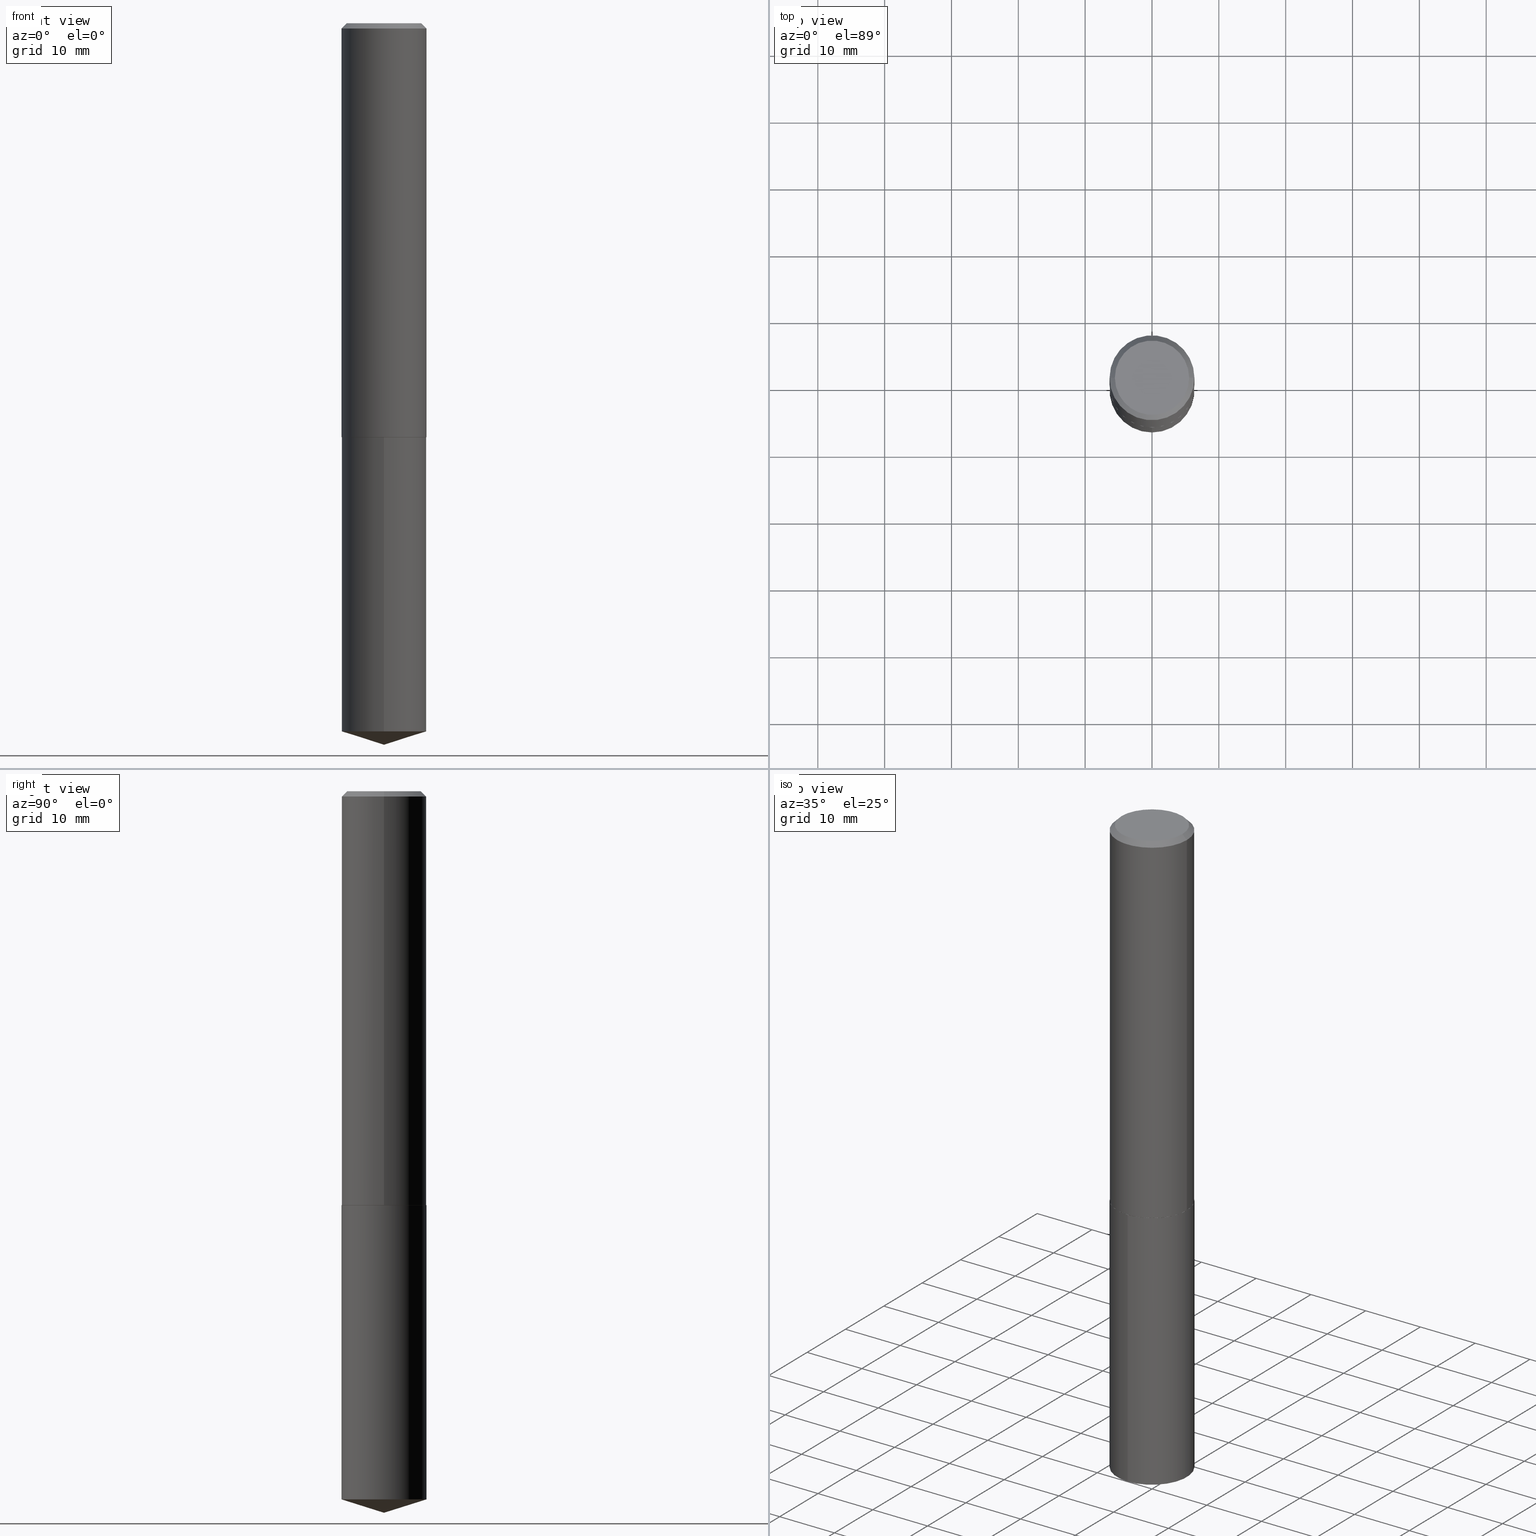
[diagram: canonical four-view strip — front | top / right | iso, engineering-drawing reading convention]
A machine part, canonical four-view strip (front | top / right | iso — engineering-drawing reading convention). The complete STEP part file that produces these views, byte-faithful:
ISO-10303-21;
HEADER;
FILE_DESCRIPTION (( 'STEP AP203' ),
    '1' );
FILE_NAME ('50031.STEP',
    '2024-04-22T18:11:30',
    ( '' ),
    ( '' ),
    'SwSTEP 2.0',
    'SolidWorks 2023',
    '' );
FILE_SCHEMA (( 'CONFIG_CONTROL_DESIGN' ));
ENDSEC;

DATA;
#1 = CIRCLE ( 'NONE', #60, 0.2500000000000000000 ) ;
#2 = DIRECTION ( 'NONE',  ( -2.445728055791702140E-29, 3.491110078650972544E-15, 1.000000000000000000 ) ) ;
#3 = DIRECTION ( 'NONE',  ( -2.445468806185136597E-29, 3.491481338843145583E-15, 1.000000000000000000 ) ) ;
#4 = DIRECTION ( 'NONE',  ( 2.438088387897960049E-29, -3.491481338843145188E-15, -1.000000000000000000 ) ) ;
#5 = CARTESIAN_POINT ( 'NONE',  ( 0.000000000000000000, 0.000000000000000000, 0.000000000000000000 ) ) ;
#6 = LOCAL_TIME ( 14, 11, 30.00000000000000000, #228 ) ;
#7 = CARTESIAN_POINT ( 'NONE',  ( 0.2187500000000000000, -1.662483614147127260E-15, 1.690012582834502406E-18 ) ) ;
#8 = CARTESIAN_POINT ( 'NONE',  ( 7.642090019328604414E-31, -1.091087918388490513E-16, -0.03125000000000021511 ) ) ;
#9 = FACE_OUTER_BOUND ( 'NONE', #105, .T. ) ;
#10 = AXIS2_PLACEMENT_3D ( 'NONE', #13, #378, #164 ) ;
#11 = CC_DESIGN_APPROVAL ( #103, ( #72 ) ) ;
#12 = VERTEX_POINT ( 'NONE', #330 ) ;
#13 = CARTESIAN_POINT ( 'NONE',  ( 5.960830215076271576E-29, -8.510485763430168319E-15, -2.437500000000000444 ) ) ;
#14 = DIRECTION ( 'NONE',  ( 1.000000000000000000, -6.982962677686264344E-15, 0.000000000000000000 ) ) ;
#15 = ORIENTED_EDGE ( 'NONE', *, *, #68, .T. ) ;
#16 = AXIS2_PLACEMENT_3D ( 'NONE', #369, #4, #59 ) ;
#17 = DATE_AND_TIME ( #112, #377 ) ;
#18 = EDGE_LOOP ( 'NONE', ( #73, #115, #251, #113 ) ) ;
#19 = CARTESIAN_POINT ( 'NONE',  ( 1.020092841309431033E-28, -1.456293727170468703E-14, -4.171175302780254057 ) ) ;
#20 = ORIENTED_EDGE ( 'NONE', *, *, #290, .T. ) ;
#21 = PRODUCT_DEFINITION ( 'UNKNOWN', '', #72, #102 ) ;
#22 = AXIS2_PLACEMENT_3D ( 'NONE', #153, #276, #309 ) ;
#23 = LOCAL_TIME ( 14, 11, 30.00000000000000000, #145 ) ;
#24 = CALENDAR_DATE ( 2024, 22, 4 ) ;
#25 = LINE ( 'NONE', #146, #110 ) ;
#26 = EDGE_LOOP ( 'NONE', ( #159, #253, #141, #387 ) ) ;
#27 = CARTESIAN_POINT ( 'NONE',  ( -0.2500000000000002776, -6.734128924029917066E-15, -2.437500000000000444 ) ) ;
#28 = VECTOR ( 'NONE', #2, 39.37007874015748143 ) ;
#29 = EDGE_CURVE ( 'NONE', #263, #53, #297, .T. ) ;
#30 = DIRECTION ( 'NONE',  ( -2.445468806185136597E-29, 3.491481338843145583E-15, 1.000000000000000000 ) ) ;
#31 = LINE ( 'NONE', #57, #28 ) ;
#32 = APPROVAL ( #137, 'UNSPECIFIED' ) ;
#33 = DIRECTION ( 'NONE',  ( 1.000000000000000000, -6.982962677686266711E-15, 4.876133991931148155E-29 ) ) ;
#34 = CC_DESIGN_PERSON_AND_ORGANIZATION_ASSIGNMENT ( #76, #234, ( #247 ) ) ;
#35 = CIRCLE ( 'NONE', #127, 0.2187500000000000000 ) ;
#36 = CARTESIAN_POINT ( 'NONE',  ( 7.642090019328604414E-31, -1.091087918388490513E-16, -0.03125000000000021511 ) ) ;
#37 = LOCAL_TIME ( 14, 11, 30.00000000000000000, #379 ) ;
#38 = LINE ( 'NONE', #130, #280 ) ;
#39 = DIRECTION ( 'NONE',  ( -2.445468806185136597E-29, 3.491481338843145583E-15, 1.000000000000000000 ) ) ;
#40 = ORIENTED_EDGE ( 'NONE', *, *, #68, .F. ) ;
#41 = CARTESIAN_POINT ( 'NONE',  ( 7.642090019328604414E-31, -1.091087918388490513E-16, -0.03125000000000021511 ) ) ;
#42 = EDGE_CURVE ( 'NONE', #292, #46, #1, .T. ) ;
#43 = SECURITY_CLASSIFICATION ( '', '', #139 ) ;
#44 = FACE_OUTER_BOUND ( 'NONE', #272, .T. ) ;
#45 = ORIENTED_EDGE ( 'NONE', *, *, #201, .T. ) ;
#46 = VERTEX_POINT ( 'NONE', #52 ) ;
#47 = APPROVAL_ROLE ( '' ) ;
#48 = CIRCLE ( 'NONE', #300, 0.2187500000000000000 ) ;
#49 = PERSON_AND_ORGANIZATION ( #323, #332 ) ;
#50 = ORIENTED_EDGE ( 'NONE', *, *, #306, .T. ) ;
#51 = PERSON_AND_ORGANIZATION ( #323, #332 ) ;
#52 = CARTESIAN_POINT ( 'NONE',  ( -1.745740669421464126E-15, -0.2500000000000144884, -4.171175302780253169 ) ) ;
#53 = VERTEX_POINT ( 'NONE', #304 ) ;
#54 = EDGE_CURVE ( 'NONE', #53, #143, #25, .T. ) ;
#55 = APPROVAL_STATUS ( 'not_yet_approved' ) ;
#56 = ORIENTED_EDGE ( 'NONE', *, *, #353, .F. ) ;
#57 = CARTESIAN_POINT ( 'NONE',  ( -1.745740669421506724E-15, -0.2500000000000084932, -2.437999999999999279 ) ) ;
#58 = ADVANCED_FACE ( 'NONE', ( #239 ), #362, .T. ) ;
#59 = DIRECTION ( 'NONE',  ( -1.000000000000000000, 6.982962677686265922E-15, -4.876176775795935793E-29 ) ) ;
#60 = AXIS2_PLACEMENT_3D ( 'NONE', #19, #147, #333 ) ;
#61 = CARTESIAN_POINT ( 'NONE',  ( -0.2500000000000002776, -6.734128924029917066E-15, -2.437500000000000444 ) ) ;
#62 = DIRECTION ( 'NONE',  ( 1.000000000000000000, -6.982962677686264344E-15, 0.000000000000000000 ) ) ;
#63 = CC_DESIGN_DATE_AND_TIME_ASSIGNMENT ( #349, #303, ( #21 ) ) ;
#64 = LINE ( 'NONE', #61, #286 ) ;
#65 = VECTOR ( 'NONE', #302, 39.37007874015748143 ) ;
#66 = DIRECTION ( 'NONE',  ( 6.982962677686265922E-15, 1.000000000000000000, -3.491110078650972544E-15 ) ) ;
#67 = CARTESIAN_POINT ( 'NONE',  ( -8.589479394695765693E-28, 1.226071557204310290E-13, 35.12007874015748143 ) ) ;
#68 = EDGE_CURVE ( 'NONE', #227, #78, #64, .T. ) ;
#69 = CARTESIAN_POINT ( 'NONE',  ( 5.962052949479364377E-29, -8.512231504099590611E-15, -2.438000000000000611 ) ) ;
#70 = FACE_OUTER_BOUND ( 'NONE', #18, .T. ) ;
#71 = AXIS2_PLACEMENT_3D ( 'NONE', #316, #225, #66 ) ;
#72 = PRODUCT_DEFINITION_FORMATION_WITH_SPECIFIED_SOURCE ( 'ANY', '', #247, .NOT_KNOWN. ) ;
#73 = ORIENTED_EDGE ( 'NONE', *, *, #207, .T. ) ;
#74 = DIRECTION ( 'NONE',  ( -6.982962677686265922E-15, -1.000000000000000000, 3.500519750498711532E-15 ) ) ;
#75 = ADVANCED_FACE ( 'NONE', ( #89 ), #93, .T. ) ;
#76 = PERSON_AND_ORGANIZATION ( #323, #332 ) ;
#77 = SHAPE_DEFINITION_REPRESENTATION ( #224, #305 ) ;
#78 = VERTEX_POINT ( 'NONE', #27 ) ;
#79 =( CONVERSION_BASED_UNIT ( 'INCH', #101 ) LENGTH_UNIT ( ) NAMED_UNIT ( #288 ) );
#80 = VERTEX_POINT ( 'NONE', #7 ) ;
#81 = ADVANCED_FACE ( 'NONE', ( #118 ), #185, .T. ) ;
#82 = ORIENTED_EDGE ( 'NONE', *, *, #220, .T. ) ;
#83 = PERSON_AND_ORGANIZATION_ROLE ( 'design_supplier' ) ;
#84 = ORIENTED_EDGE ( 'NONE', *, *, #29, .F. ) ;
#85 = AXIS2_PLACEMENT_3D ( 'NONE', #363, #275, #335 ) ;
#86 = APPROVAL_PERSON_ORGANIZATION ( #298, #278, #178 ) ;
#87 = CARTESIAN_POINT ( 'NONE',  ( 5.962052949479363256E-29, -8.512231504099589034E-15, -2.438000000000000167 ) ) ;
#88 = EDGE_CURVE ( 'NONE', #285, #143, #273, .T. ) ;
#89 = FACE_OUTER_BOUND ( 'NONE', #380, .T. ) ;
#90 = CARTESIAN_POINT ( 'NONE',  ( 1.039435532178906852E-28, -1.483721783426663045E-14, -4.250000000000000000 ) ) ;
#91 = AXIS2_PLACEMENT_3D ( 'NONE', #198, #248, #125 ) ;
#92 = CC_DESIGN_APPROVAL ( #278, ( #21 ) ) ;
#93 = CYLINDRICAL_SURFACE ( 'NONE', #238, 0.2500000000000001110 ) ;
#94 = CARTESIAN_POINT ( 'NONE',  ( -0.2495000000000004436, -6.736778151204026689E-15, -2.438000000000000611 ) ) ;
#95 = DIRECTION ( 'NONE',  ( -2.445468806185136597E-29, 3.491481338843145583E-15, 1.000000000000000000 ) ) ;
#96 = AXIS2_PLACEMENT_3D ( 'NONE', #289, #315, #74 ) ;
#97 = DIRECTION ( 'NONE',  ( -1.000000000000000000, 6.982962677686266711E-15, 0.000000000000000000 ) ) ;
#98 = EDGE_CURVE ( 'NONE', #227, #263, #189, .T. ) ;
#99 = DIRECTION ( 'NONE',  ( -2.438088387897960049E-29, 3.491481338843145188E-15, 1.000000000000000000 ) ) ;
#100 = ORIENTED_EDGE ( 'NONE', *, *, #274, .F. ) ;
#101 = LENGTH_MEASURE_WITH_UNIT ( LENGTH_MEASURE( 0.02539999999999999897 ), #322 );
#102 = DESIGN_CONTEXT ( 'detailed design', #321, 'design' ) ;
#103 = APPROVAL ( #55, 'UNSPECIFIED' ) ;
#104 = DIRECTION ( 'NONE',  ( -2.445728055791702140E-29, 3.491110078650972544E-15, 1.000000000000000000 ) ) ;
#105 = EDGE_LOOP ( 'NONE', ( #230, #193, #210, #171 ) ) ;
#106 = DIRECTION ( 'NONE',  ( -2.445468806185136597E-29, 3.491481338843145583E-15, 1.000000000000000000 ) ) ;
#107 = DATE_AND_TIME ( #209, #293 ) ;
#108 = ORIENTED_EDGE ( 'NONE', *, *, #290, .F. ) ;
#109 = ORIENTED_EDGE ( 'NONE', *, *, #152, .T. ) ;
#110 = VECTOR ( 'NONE', #389, 39.37007874015748143 ) ;
#111 = ADVANCED_FACE ( 'NONE', ( #213 ), #244, .T. ) ;
#112 = CALENDAR_DATE ( 2024, 22, 4 ) ;
#113 = ORIENTED_EDGE ( 'NONE', *, *, #152, .F. ) ;
#114 = APPLICATION_PROTOCOL_DEFINITION ( 'international standard', 'config_control_design', 1994, #140 ) ;
#115 = ORIENTED_EDGE ( 'NONE', *, *, #126, .T. ) ;
#116 = ORIENTED_EDGE ( 'NONE', *, *, #122, .T. ) ;
#117 = AXIS2_PLACEMENT_3D ( 'NONE', #151, #368, #186 ) ;
#118 = FACE_OUTER_BOUND ( 'NONE', #26, .T. ) ;
#119 = CARTESIAN_POINT ( 'NONE',  ( 1.776356839400310024E-15, 0.2499999999999915068, -2.438000000000001055 ) ) ;
#120 = CARTESIAN_POINT ( 'NONE',  ( -4.132873053354873331E-47, 5.900647395337827157E-33, 1.690012582823348383E-18 ) ) ;
#121 = CONICAL_SURFACE ( 'NONE', #361, 0.2500000000000000000, 0.7853981633974449483 ) ;
#122 = EDGE_CURVE ( 'NONE', #78, #53, #336, .T. ) ;
#123 = DIRECTION ( 'NONE',  ( 6.776566513254256560E-15, 0.9537169507482285979, 0.3007057995042677900 ) ) ;
#124 = FACE_OUTER_BOUND ( 'NONE', #359, .T. ) ;
#125 = DIRECTION ( 'NONE',  ( -6.982962677686265922E-15, -1.000000000000000000, 3.278217592397115862E-15 ) ) ;
#126 = EDGE_CURVE ( 'NONE', #292, #390, #243, .T. ) ;
#127 = AXIS2_PLACEMENT_3D ( 'NONE', #120, #95, #33 ) ;
#128 = CARTESIAN_POINT ( 'NONE',  ( 1.776356839400351439E-15, 0.2499999999999853728, -4.171175302780255834 ) ) ;
#129 = EDGE_LOOP ( 'NONE', ( #179, #45, #195, #351 ) ) ;
#130 = CARTESIAN_POINT ( 'NONE',  ( 1.039308013603312016E-28, -1.483902809896366514E-14, -4.250000000000000000 ) ) ;
#131 = CC_DESIGN_PERSON_AND_ORGANIZATION_ASSIGNMENT ( #51, #301, ( #21 ) ) ;
#132 = DIRECTION ( 'NONE',  ( -0.7071067811865451302, 2.468850131082231817E-15, -0.7071067811865499042 ) ) ;
#133 = UNCERTAINTY_MEASURE_WITH_UNIT (LENGTH_MEASURE( 1.000000000000000082E-05 ), #79, 'distance_accuracy_value', 'NONE');
#134 = VERTEX_POINT ( 'NONE', #311 ) ;
#135 = DIRECTION ( 'NONE',  ( -6.659769872151631300E-15, -0.9537169507482265995, 0.3007057995042744514 ) ) ;
#136 = VECTOR ( 'NONE', #242, 39.37007874015748143 ) ;
#137 = APPROVAL_STATUS ( 'not_yet_approved' ) ;
#138 = ORIENTED_EDGE ( 'NONE', *, *, #163, .T. ) ;
#139 = SECURITY_CLASSIFICATION_LEVEL ( 'unclassified' ) ;
#140 = APPLICATION_CONTEXT ( 'configuration controlled 3d designs of mechanical parts and assemblies' ) ;
#141 = ORIENTED_EDGE ( 'NONE', *, *, #169, .F. ) ;
#142 = CALENDAR_DATE ( 2024, 22, 4 ) ;
#143 = VERTEX_POINT ( 'NONE', #148 ) ;
#144 = CONICAL_SURFACE ( 'NONE', #96, 124.8659371009148060, 1.265363707695891016 ) ;
#145 = COORDINATED_UNIVERSAL_TIME_OFFSET ( 5, 0, .BEHIND. ) ;
#146 = CARTESIAN_POINT ( 'NONE',  ( 0.2500000000000001110, -1.745740669421567664E-15, 1.219044193948984649E-29 ) ) ;
#147 = DIRECTION ( 'NONE',  ( -2.445728055791702140E-29, 3.491110078650972544E-15, 1.000000000000000000 ) ) ;
#148 = CARTESIAN_POINT ( 'NONE',  ( 0.2500000000000000000, -1.854849461260415778E-15, -0.03125000000000021511 ) ) ;
#149 = CIRCLE ( 'NONE', #318, 0.2495000000000004436 ) ;
#150 = DIRECTION ( 'NONE',  ( 1.000000000000000000, -6.982962677686267499E-15, 4.876176775795936353E-29 ) ) ;
#151 = CARTESIAN_POINT ( 'NONE',  ( 5.960830215076271576E-29, -8.510485763430168319E-15, -2.437500000000000444 ) ) ;
#152 = EDGE_CURVE ( 'NONE', #46, #205, #31, .T. ) ;
#153 = CARTESIAN_POINT ( 'NONE',  ( 1.020092841309431033E-28, -1.456293727170468703E-14, -4.171175302780254057 ) ) ;
#154 = AXIS2_PLACEMENT_3D ( 'NONE', #155, #364, #337 ) ;
#155 = CARTESIAN_POINT ( 'NONE',  ( 7.642090019328604414E-31, -1.091087918388490513E-16, -0.03125000000000021511 ) ) ;
#156 = ADVANCED_FACE ( 'NONE', ( #124 ), #277, .F. ) ;
#157 = DIRECTION ( 'NONE',  ( 2.445468806185136597E-29, -3.491481338843145583E-15, -1.000000000000000000 ) ) ;
#158 = FACE_OUTER_BOUND ( 'NONE', #255, .T. ) ;
#159 = ORIENTED_EDGE ( 'NONE', *, *, #353, .T. ) ;
#160 = AXIS2_PLACEMENT_3D ( 'NONE', #310, #246, #62 ) ;
#161 = DIRECTION ( 'NONE',  ( -6.982962677686265922E-15, -1.000000000000000000, 3.278217592397115862E-15 ) ) ;
#162 = ORIENTED_EDGE ( 'NONE', *, *, #338, .T. ) ;
#163 = EDGE_CURVE ( 'NONE', #12, #80, #35, .T. ) ;
#164 = DIRECTION ( 'NONE',  ( 1.000000000000000000, -6.982962677686266711E-15, 0.000000000000000000 ) ) ;
#165 = CARTESIAN_POINT ( 'NONE',  ( -4.132873053354873331E-47, 5.900647395337827157E-33, 1.690012582823348383E-18 ) ) ;
#166 = AXIS2_PLACEMENT_3D ( 'NONE', #5, #30, #187 ) ;
#167 = APPROVAL_DATE_TIME ( #269, #103 ) ;
#168 = EDGE_LOOP ( 'NONE', ( #233, #203, #109, #108 ) ) ;
#169 = EDGE_CURVE ( 'NONE', #143, #285, #385, .T. ) ;
#170 = APPROVAL_DATE_TIME ( #271, #278 ) ;
#171 = ORIENTED_EDGE ( 'NONE', *, *, #88, .T. ) ;
#172 =( NAMED_UNIT ( * ) PLANE_ANGLE_UNIT ( ) SI_UNIT ( $, .RADIAN. ) );
#173 = ORIENTED_EDGE ( 'NONE', *, *, #29, .T. ) ;
#174 = CARTESIAN_POINT ( 'NONE',  ( 0.2500000000000002776, -1.025622643285173815E-14, -2.437500000000000444 ) ) ;
#175 = AXIS2_PLACEMENT_3D ( 'NONE', #192, #99, #252 ) ;
#176 = CC_DESIGN_APPROVAL ( #32, ( #43 ) ) ;
#177 = EDGE_CURVE ( 'NONE', #134, #292, #366, .T. ) ;
#178 = APPROVAL_ROLE ( '' ) ;
#179 = ORIENTED_EDGE ( 'NONE', *, *, #338, .F. ) ;
#180 = CC_DESIGN_PERSON_AND_ORGANIZATION_ASSIGNMENT ( #265, #83, ( #72 ) ) ;
#181 = CARTESIAN_POINT ( 'NONE',  ( 0.000000000000000000, 0.000000000000000000, 0.000000000000000000 ) ) ;
#182 = LINE ( 'NONE', #221, #249 ) ;
#183 = CIRCLE ( 'NONE', #10, 0.2500000000000002776 ) ;
#184 = APPROVAL_PERSON_ORGANIZATION ( #49, #103, #47 ) ;
#185 = CYLINDRICAL_SURFACE ( 'NONE', #166, 0.2500000000000001110 ) ;
#186 = DIRECTION ( 'NONE',  ( 1.000000000000000000, -6.982962677686266711E-15, 0.000000000000000000 ) ) ;
#187 = DIRECTION ( 'NONE',  ( 1.000000000000000000, -6.982962677686267499E-15, 4.876176775795936353E-29 ) ) ;
#188 = AXIS2_PLACEMENT_3D ( 'NONE', #36, #279, #281 ) ;
#189 = CIRCLE ( 'NONE', #160, 0.2495000000000004436 ) ;
#190 = CARTESIAN_POINT ( 'NONE',  ( 0.2495000000000004436, -1.025448069218231744E-14, -2.438000000000000611 ) ) ;
#191 = CC_DESIGN_PERSON_AND_ORGANIZATION_ASSIGNMENT ( #388, #386, ( #43 ) ) ;
#192 = CARTESIAN_POINT ( 'NONE',  ( 4.097995029152302120E-29, -1.118166854159597170E-14, -2.438000000000000611 ) ) ;
#193 = ORIENTED_EDGE ( 'NONE', *, *, #163, .F. ) ;
#194 = CARTESIAN_POINT ( 'NONE',  ( 5.960830215076271576E-29, -8.510485763430168319E-15, -2.437500000000000444 ) ) ;
#195 = ORIENTED_EDGE ( 'NONE', *, *, #169, .T. ) ;
#196 = VECTOR ( 'NONE', #123, 39.37007874015748143 ) ;
#197 = AXIS2_PLACEMENT_3D ( 'NONE', #202, #327, #354 ) ;
#198 = CARTESIAN_POINT ( 'NONE',  ( 5.962052949479363256E-29, -8.512231504099589034E-15, -2.438000000000000167 ) ) ;
#199 = ORIENTED_EDGE ( 'NONE', *, *, #122, .F. ) ;
#200 = DIRECTION ( 'NONE',  ( -6.982962677686265922E-15, -1.000000000000000000, 3.500519750498711532E-15 ) ) ;
#201 = EDGE_CURVE ( 'NONE', #80, #143, #182, .T. ) ;
#202 = CARTESIAN_POINT ( 'NONE',  ( 0.000000000000000000, 0.000000000000000000, 0.000000000000000000 ) ) ;
#203 = ORIENTED_EDGE ( 'NONE', *, *, #42, .T. ) ;
#204 = MECHANICAL_CONTEXT ( 'NONE', #140, 'mechanical' ) ;
#205 = VERTEX_POINT ( 'NONE', #218 ) ;
#206 = CALENDAR_DATE ( 2024, 22, 4 ) ;
#207 = EDGE_CURVE ( 'NONE', #46, #292, #365, .T. ) ;
#208 = EDGE_LOOP ( 'NONE', ( #40, #237, #173, #199 ) ) ;
#209 = CALENDAR_DATE ( 2024, 22, 4 ) ;
#210 = ORIENTED_EDGE ( 'NONE', *, *, #268, .T. ) ;
#211 = AXIS2_PLACEMENT_3D ( 'NONE', #194, #258, #226 ) ;
#212 = ORIENTED_EDGE ( 'NONE', *, *, #54, .T. ) ;
#213 = FACE_OUTER_BOUND ( 'NONE', #208, .T. ) ;
#214 = DIRECTION ( 'NONE',  ( -2.445728055791702140E-29, 3.491110078650972544E-15, 1.000000000000000000 ) ) ;
#215 = CLOSED_SHELL ( 'NONE', ( #257, #81, #381, #370, #111, #75, #342, #156 ) ) ;
#216 = VECTOR ( 'NONE', #287, 39.37007874015748143 ) ;
#217 =( GEOMETRIC_REPRESENTATION_CONTEXT ( 3 ) GLOBAL_UNCERTAINTY_ASSIGNED_CONTEXT ( ( #133 ) ) GLOBAL_UNIT_ASSIGNED_CONTEXT ( ( #79, #172, #259 ) ) REPRESENTATION_CONTEXT ( 'NONE', 'WORKASPACE' ) );
#218 = CARTESIAN_POINT ( 'NONE',  ( -1.745740669421506724E-15, -0.2500000000000084932, -2.437999999999999723 ) ) ;
#219 = FACE_OUTER_BOUND ( 'NONE', #270, .T. ) ;
#220 = EDGE_CURVE ( 'NONE', #205, #390, #222, .T. ) ;
#221 = CARTESIAN_POINT ( 'NONE',  ( 0.2500000000000000000, -1.824233291281731991E-15, -0.03125000000000021511 ) ) ;
#222 = CIRCLE ( 'NONE', #372, 0.2500000000000000000 ) ;
#223 = CARTESIAN_POINT ( 'NONE',  ( -0.2500000000000000000, 1.636631877582717577E-15, -0.03125000000000021511 ) ) ;
#224 = PRODUCT_DEFINITION_SHAPE ( 'NONE', 'NONE',  #21 ) ;
#225 = DIRECTION ( 'NONE',  ( 2.445728055791701860E-29, -3.491110078650972544E-15, -1.000000000000000000 ) ) ;
#226 = DIRECTION ( 'NONE',  ( 1.000000000000000000, -6.982962677686266711E-15, 0.000000000000000000 ) ) ;
#227 = VERTEX_POINT ( 'NONE', #94 ) ;
#228 = COORDINATED_UNIVERSAL_TIME_OFFSET ( 5, 0, .BEHIND. ) ;
#229 = APPROVAL_DATE_TIME ( #107, #32 ) ;
#230 = ORIENTED_EDGE ( 'NONE', *, *, #201, .F. ) ;
#231 = CC_DESIGN_PERSON_AND_ORGANIZATION_ASSIGNMENT ( #296, #294, ( #72 ) ) ;
#232 = CONICAL_SURFACE ( 'NONE', #347, 0.2500000000000000000, 0.7853981633974449483 ) ;
#233 = ORIENTED_EDGE ( 'NONE', *, *, #126, .F. ) ;
#234 = PERSON_AND_ORGANIZATION_ROLE ( 'design_owner' ) ;
#235 = ORIENTED_EDGE ( 'NONE', *, *, #177, .T. ) ;
#236 = COORDINATED_UNIVERSAL_TIME_OFFSET ( 5, 0, .BEHIND. ) ;
#237 = ORIENTED_EDGE ( 'NONE', *, *, #98, .T. ) ;
#238 = AXIS2_PLACEMENT_3D ( 'NONE', #181, #3, #150 ) ;
#239 = FACE_OUTER_BOUND ( 'NONE', #168, .T. ) ;
#240 = DIRECTION ( 'NONE',  ( -6.982962677686265922E-15, -1.000000000000000000, 3.278217592397115862E-15 ) ) ;
#241 = ADVANCED_FACE ( 'NONE', ( #219 ), #340, .F. ) ;
#242 = DIRECTION ( 'NONE',  ( -2.445728055791702140E-29, 3.491110078650972544E-15, 1.000000000000000000 ) ) ;
#243 = LINE ( 'NONE', #119, #136 ) ;
#244 = CONICAL_SURFACE ( 'NONE', #85, 0.2500000000000002776, 0.7853981633971067744 ) ;
#245 = DIRECTION ( 'NONE',  ( 0.7071067811865451302, -7.319954787623248157E-15, -0.7071067811865499042 ) ) ;
#246 = DIRECTION ( 'NONE',  ( -2.445468806185136597E-29, 3.491481338843145583E-15, 1.000000000000000000 ) ) ;
#247 = PRODUCT ( '50031', '50031', '', ( #204 ) ) ;
#248 = DIRECTION ( 'NONE',  ( -2.445728055791702140E-29, 3.491110078650972544E-15, 1.000000000000000000 ) ) ;
#249 = VECTOR ( 'NONE', #245, 39.37007874015748143 ) ;
#250 = CYLINDRICAL_SURFACE ( 'NONE', #91, 0.2500000000000000000 ) ;
#251 = ORIENTED_EDGE ( 'NONE', *, *, #220, .F. ) ;
#252 = DIRECTION ( 'NONE',  ( 1.000000000000000000, -6.982962677686265922E-15, 4.876176775795935793E-29 ) ) ;
#253 = ORIENTED_EDGE ( 'NONE', *, *, #274, .T. ) ;
#254 = CARTESIAN_POINT ( 'NONE',  ( 5.962052949479364377E-29, -8.512231504099590611E-15, -2.438000000000000167 ) ) ;
#255 = EDGE_LOOP ( 'NONE', ( #375, #295 ) ) ;
#256 = AXIS2_PLACEMENT_3D ( 'NONE', #254, #320, #161 ) ;
#257 = ADVANCED_FACE ( 'NONE', ( #344 ), #121, .T. ) ;
#258 = DIRECTION ( 'NONE',  ( -2.445468806185136597E-29, 3.491481338843145583E-15, 1.000000000000000000 ) ) ;
#259 =( NAMED_UNIT ( * ) SI_UNIT ( $, .STERADIAN. ) SOLID_ANGLE_UNIT ( ) );
#260 = PRODUCT_RELATED_PRODUCT_CATEGORY ( 'detail', '', ( #247 ) ) ;
#261 = ORIENTED_EDGE ( 'NONE', *, *, #88, .F. ) ;
#262 = PERSON_AND_ORGANIZATION ( #323, #332 ) ;
#263 = VERTEX_POINT ( 'NONE', #190 ) ;
#264 = CIRCLE ( 'NONE', #256, 0.2500000000000000000 ) ;
#265 = PERSON_AND_ORGANIZATION ( #323, #332 ) ;
#266 = CC_DESIGN_SECURITY_CLASSIFICATION ( #43, ( #72 ) ) ;
#267 = ORIENTED_EDGE ( 'NONE', *, *, #314, .T. ) ;
#268 = EDGE_CURVE ( 'NONE', #12, #285, #348, .T. ) ;
#269 = DATE_AND_TIME ( #206, #6 ) ;
#270 = EDGE_LOOP ( 'NONE', ( #82, #20 ) ) ;
#271 = DATE_AND_TIME ( #24, #37 ) ;
#272 = EDGE_LOOP ( 'NONE', ( #357, #235, #355 ) ) ;
#273 = CIRCLE ( 'NONE', #188, 0.2500000000000000000 ) ;
#274 = EDGE_CURVE ( 'NONE', #78, #285, #313, .T. ) ;
#275 = DIRECTION ( 'NONE',  ( -2.445468806185136597E-29, 3.491481338843145583E-15, 1.000000000000000000 ) ) ;
#276 = DIRECTION ( 'NONE',  ( -2.445728055791702140E-29, 3.491110078650972544E-15, 1.000000000000000000 ) ) ;
#277 = PLANE ( 'NONE',  #16 ) ;
#278 = APPROVAL ( #356, 'UNSPECIFIED' ) ;
#279 = DIRECTION ( 'NONE',  ( -2.445468806185136597E-29, 3.491481338843145583E-15, 1.000000000000000000 ) ) ;
#280 = VECTOR ( 'NONE', #135, 39.37007874015748143 ) ;
#281 = DIRECTION ( 'NONE',  ( 1.000000000000000000, -6.982962677686266711E-15, 0.000000000000000000 ) ) ;
#282 = DIRECTION ( 'NONE',  ( -1.000000000000000000, 6.982962677686266711E-15, 0.000000000000000000 ) ) ;
#283 = CARTESIAN_POINT ( 'NONE',  ( 1.776356839400352622E-15, 0.2499999999999915068, -2.438000000000001055 ) ) ;
#284 = ADVANCED_FACE ( 'NONE', ( #70 ), #250, .T. ) ;
#285 = VERTEX_POINT ( 'NONE', #371 ) ;
#286 = VECTOR ( 'NONE', #312, 39.37007874015748143 ) ;
#287 = DIRECTION ( 'NONE',  ( -2.445468806185136877E-29, 3.491481338843145188E-15, 1.000000000000000000 ) ) ;
#288 = DIMENSIONAL_EXPONENTS ( 1.000000000000000000, 0.000000000000000000, 0.000000000000000000, 0.000000000000000000, 0.000000000000000000, 0.000000000000000000, 0.000000000000000000 ) ;
#289 = CARTESIAN_POINT ( 'NONE',  ( -8.589479394695765693E-28, 1.226071557204310290E-13, 35.12007874015748143 ) ) ;
#290 = EDGE_CURVE ( 'NONE', #390, #205, #264, .T. ) ;
#291 = CARTESIAN_POINT ( 'NONE',  ( -0.2500000000000001110, 1.776356839400251254E-15, -1.229733772563727146E-29 ) ) ;
#292 = VERTEX_POINT ( 'NONE', #128 ) ;
#293 = LOCAL_TIME ( 14, 11, 30.00000000000000000, #329 ) ;
#294 = PERSON_AND_ORGANIZATION_ROLE ( 'creator' ) ;
#295 = ORIENTED_EDGE ( 'NONE', *, *, #98, .F. ) ;
#296 = PERSON_AND_ORGANIZATION ( #323, #332 ) ;
#297 = LINE ( 'NONE', #174, #65 ) ;
#298 = PERSON_AND_ORGANIZATION ( #323, #332 ) ;
#299 = ORIENTED_EDGE ( 'NONE', *, *, #42, .F. ) ;
#300 = AXIS2_PLACEMENT_3D ( 'NONE', #165, #106, #343 ) ;
#301 = PERSON_AND_ORGANIZATION_ROLE ( 'creator' ) ;
#302 = DIRECTION ( 'NONE',  ( 0.7071067811863059882, -2.468850131079726789E-15, 0.7071067811867890462 ) ) ;
#303 = DATE_TIME_ROLE ( 'creation_date' ) ;
#304 = CARTESIAN_POINT ( 'NONE',  ( 0.2500000000000002776, -1.025622643285173815E-14, -2.437500000000000444 ) ) ;
#305 = ADVANCED_BREP_SHAPE_REPRESENTATION ( '50031', ( #317, #324, #197 ), #217 ) ;
#306 = EDGE_CURVE ( 'NONE', #134, #46, #38, .T. ) ;
#307 = CARTESIAN_POINT ( 'NONE',  ( 5.962052949479364377E-29, -8.512231504099590611E-15, -2.438000000000000167 ) ) ;
#308 = CONICAL_SURFACE ( 'NONE', #352, 124.8659371009148060, 1.265363707695891016 ) ;
#309 = DIRECTION ( 'NONE',  ( -6.982962677686265922E-15, -1.000000000000000000, 4.370956789862821150E-15 ) ) ;
#310 = CARTESIAN_POINT ( 'NONE',  ( 5.962052949479364377E-29, -8.512231504099590611E-15, -2.438000000000000611 ) ) ;
#311 = CARTESIAN_POINT ( 'NONE',  ( 1.039434423711473592E-28, -1.483721783426663045E-14, -4.250000000000000000 ) ) ;
#312 = DIRECTION ( 'NONE',  ( -0.7071067811863059882, 7.493145998869481680E-15, 0.7071067811867890462 ) ) ;
#313 = LINE ( 'NONE', #291, #216 ) ;
#314 = EDGE_CURVE ( 'NONE', #263, #227, #149, .T. ) ;
#315 = DIRECTION ( 'NONE',  ( -2.445728055791702140E-29, 3.491110078650972544E-15, 1.000000000000000000 ) ) ;
#316 = CARTESIAN_POINT ( 'NONE',  ( 4.101723144992954185E-29, -1.117632966752097855E-14, -2.438000000000000167 ) ) ;
#317 = MANIFOLD_SOLID_BREP ( 'Body-Move/Copy2[1]', #384 ) ;
#318 = AXIS2_PLACEMENT_3D ( 'NONE', #69, #39, #14 ) ;
#319 = APPROVAL_PERSON_ORGANIZATION ( #262, #32, #382 ) ;
#320 = DIRECTION ( 'NONE',  ( -2.445728055791702140E-29, 3.491110078650972544E-15, 1.000000000000000000 ) ) ;
#321 = APPLICATION_CONTEXT ( 'configuration controlled 3d designs of mechanical parts and assemblies' ) ;
#322 =( LENGTH_UNIT ( ) NAMED_UNIT ( * ) SI_UNIT ( $, .METRE. ) );
#323 = PERSON ( 'UNSPECIFIED', 'UNSPECIFIED', 'UNSPECIFIED', ('UNSPECIFIED'), ('UNSPECIFIED'), ('UNSPECIFIED') ) ;
#324 = MANIFOLD_SOLID_BREP ( 'Body-Move/Copy2[2]', #215 ) ;
#325 = EDGE_LOOP ( 'NONE', ( #383, #50, #299 ) ) ;
#326 = ADVANCED_FACE ( 'NONE', ( #44 ), #144, .T. ) ;
#327 = DIRECTION ( 'NONE',  ( 0.000000000000000000, 0.000000000000000000, 1.000000000000000000 ) ) ;
#328 = EDGE_LOOP ( 'NONE', ( #267, #15, #56, #84 ) ) ;
#329 = COORDINATED_UNIVERSAL_TIME_OFFSET ( 5, 0, .BEHIND. ) ;
#330 = CARTESIAN_POINT ( 'NONE',  ( -0.2187500000000000000, 1.582077481663294210E-15, 1.690012582812475353E-18 ) ) ;
#331 = CONICAL_SURFACE ( 'NONE', #211, 0.2500000000000002776, 0.7853981633971067744 ) ;
#332 = ORGANIZATION ( 'UNSPECIFIED', 'UNSPECIFIED', '' ) ;
#333 = DIRECTION ( 'NONE',  ( -6.982962677686265922E-15, -1.000000000000000000, 4.370956789862821150E-15 ) ) ;
#334 = DIRECTION ( 'NONE',  ( -2.445728055791702140E-29, 3.491110078650972544E-15, 1.000000000000000000 ) ) ;
#335 = DIRECTION ( 'NONE',  ( 1.000000000000000000, -6.982962677686266711E-15, 0.000000000000000000 ) ) ;
#336 = CIRCLE ( 'NONE', #117, 0.2500000000000002776 ) ;
#337 = DIRECTION ( 'NONE',  ( 1.000000000000000000, -6.982962677686266711E-15, 0.000000000000000000 ) ) ;
#338 = EDGE_CURVE ( 'NONE', #80, #12, #48, .T. ) ;
#339 = DIRECTION ( 'NONE',  ( -6.982962677686265922E-15, -1.000000000000000000, 3.278217592397115862E-15 ) ) ;
#340 = PLANE ( 'NONE',  #71 ) ;
#341 = PLANE ( 'NONE',  #175 ) ;
#342 = ADVANCED_FACE ( 'NONE', ( #9 ), #232, .T. ) ;
#343 = DIRECTION ( 'NONE',  ( 1.000000000000000000, -6.982962677686266711E-15, 4.876133991931148155E-29 ) ) ;
#344 = FACE_OUTER_BOUND ( 'NONE', #129, .T. ) ;
#345 = ADVANCED_FACE ( 'NONE', ( #374 ), #308, .T. ) ;
#346 = DIRECTION ( 'NONE',  ( 2.445468806185136597E-29, -3.491481338843145583E-15, -1.000000000000000000 ) ) ;
#347 = AXIS2_PLACEMENT_3D ( 'NONE', #41, #346, #282 ) ;
#348 = LINE ( 'NONE', #223, #360 ) ;
#349 = DATE_AND_TIME ( #142, #23 ) ;
#350 = APPLICATION_PROTOCOL_DEFINITION ( 'international standard', 'config_control_design', 1994, #321 ) ;
#351 = ORIENTED_EDGE ( 'NONE', *, *, #268, .F. ) ;
#352 = AXIS2_PLACEMENT_3D ( 'NONE', #67, #104, #200 ) ;
#353 = EDGE_CURVE ( 'NONE', #53, #78, #183, .T. ) ;
#354 = DIRECTION ( 'NONE',  ( 1.000000000000000000, 0.000000000000000000, 0.000000000000000000 ) ) ;
#355 = ORIENTED_EDGE ( 'NONE', *, *, #207, .F. ) ;
#356 = APPROVAL_STATUS ( 'not_yet_approved' ) ;
#357 = ORIENTED_EDGE ( 'NONE', *, *, #306, .F. ) ;
#358 = DATE_TIME_ROLE ( 'classification_date' ) ;
#359 = EDGE_LOOP ( 'NONE', ( #138, #162 ) ) ;
#360 = VECTOR ( 'NONE', #132, 39.37007874015748143 ) ;
#361 = AXIS2_PLACEMENT_3D ( 'NONE', #8, #157, #97 ) ;
#362 = CYLINDRICAL_SURFACE ( 'NONE', #376, 0.2500000000000000000 ) ;
#363 = CARTESIAN_POINT ( 'NONE',  ( 5.960830215076271576E-29, -8.510485763430168319E-15, -2.437500000000000444 ) ) ;
#364 = DIRECTION ( 'NONE',  ( -2.445468806185136597E-29, 3.491481338843145583E-15, 1.000000000000000000 ) ) ;
#365 = CIRCLE ( 'NONE', #22, 0.2500000000000000000 ) ;
#366 = LINE ( 'NONE', #90, #196 ) ;
#367 = CC_DESIGN_DATE_AND_TIME_ASSIGNMENT ( #17, #358, ( #43 ) ) ;
#368 = DIRECTION ( 'NONE',  ( -2.445468806185136597E-29, 3.491481338843145583E-15, 1.000000000000000000 ) ) ;
#369 = CARTESIAN_POINT ( 'NONE',  ( -2.066436526677436665E-47, 2.950323697668913578E-33, 8.450062914116741915E-19 ) ) ;
#370 = ADVANCED_FACE ( 'NONE', ( #158 ), #341, .F. ) ;
#371 = CARTESIAN_POINT ( 'NONE',  ( -0.2500000000000000000, -2.533440438234257062E-15, -0.03125000000000021511 ) ) ;
#372 = AXIS2_PLACEMENT_3D ( 'NONE', #307, #214, #339 ) ;
#373 = FACE_OUTER_BOUND ( 'NONE', #328, .T. ) ;
#374 = FACE_OUTER_BOUND ( 'NONE', #325, .T. ) ;
#375 = ORIENTED_EDGE ( 'NONE', *, *, #314, .F. ) ;
#376 = AXIS2_PLACEMENT_3D ( 'NONE', #87, #334, #240 ) ;
#377 = LOCAL_TIME ( 14, 11, 30.00000000000000000, #236 ) ;
#378 = DIRECTION ( 'NONE',  ( -2.445468806185136597E-29, 3.491481338843145583E-15, 1.000000000000000000 ) ) ;
#379 = COORDINATED_UNIVERSAL_TIME_OFFSET ( 5, 0, .BEHIND. ) ;
#380 = EDGE_LOOP ( 'NONE', ( #100, #116, #212, #261 ) ) ;
#381 = ADVANCED_FACE ( 'NONE', ( #373 ), #331, .T. ) ;
#382 = APPROVAL_ROLE ( '' ) ;
#383 = ORIENTED_EDGE ( 'NONE', *, *, #177, .F. ) ;
#384 = CLOSED_SHELL ( 'NONE', ( #284, #326, #345, #58, #241 ) ) ;
#385 = CIRCLE ( 'NONE', #154, 0.2500000000000000000 ) ;
#386 = PERSON_AND_ORGANIZATION_ROLE ( 'classification_officer' ) ;
#387 = ORIENTED_EDGE ( 'NONE', *, *, #54, .F. ) ;
#388 = PERSON_AND_ORGANIZATION ( #323, #332 ) ;
#389 = DIRECTION ( 'NONE',  ( -2.445468806185136877E-29, 3.491481338843145188E-15, 1.000000000000000000 ) ) ;
#390 = VERTEX_POINT ( 'NONE', #283 ) ;
ENDSEC;
END-ISO-10303-21;
